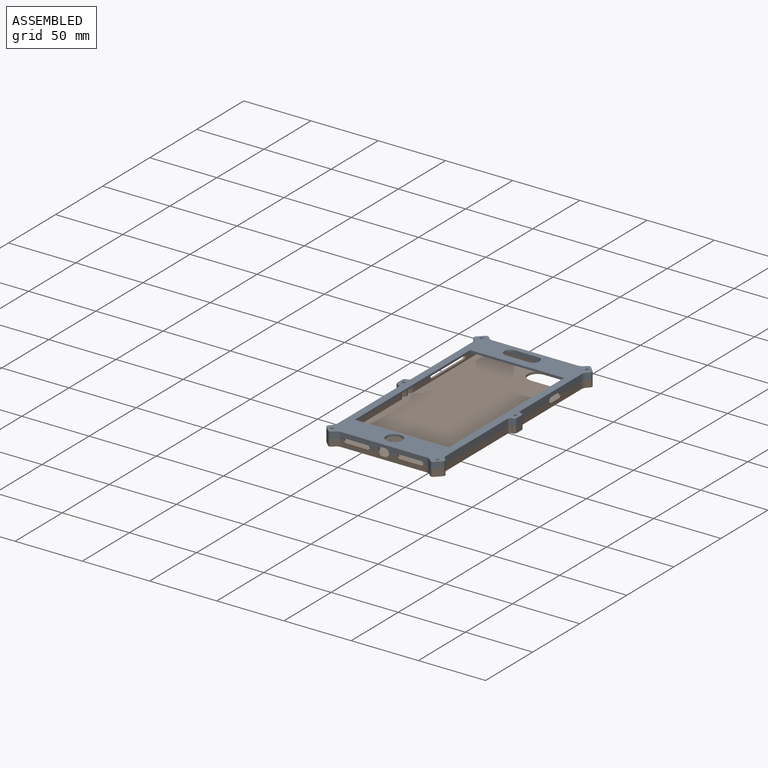
[diagram: assembled view]
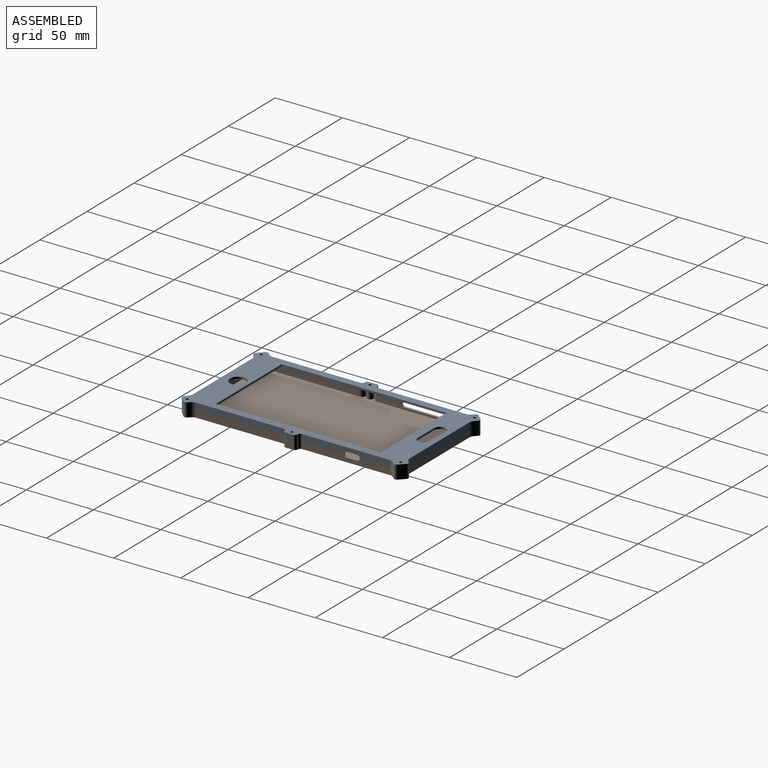
[diagram: assembled view, second angle]
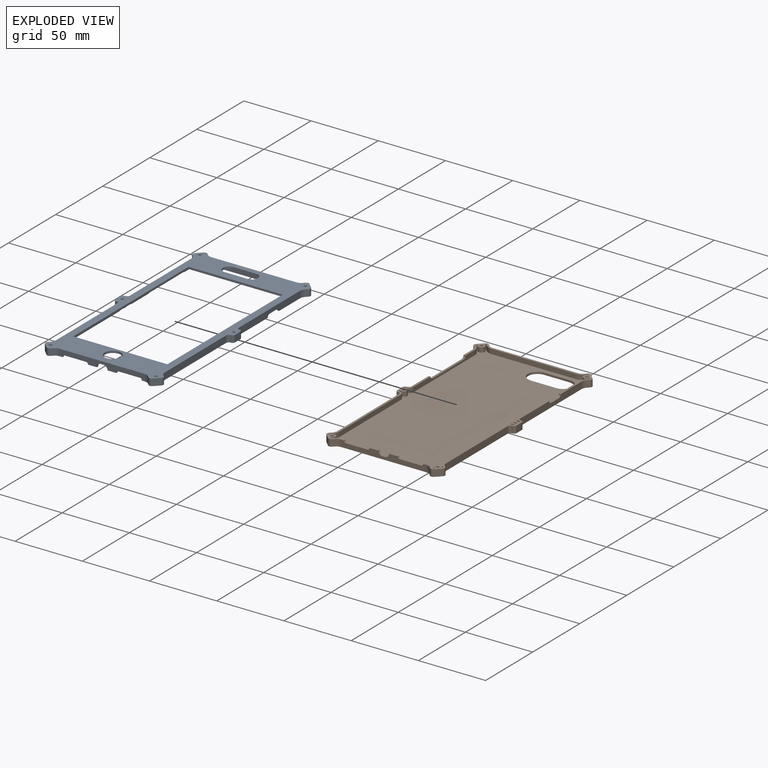
[diagram: exploded view]
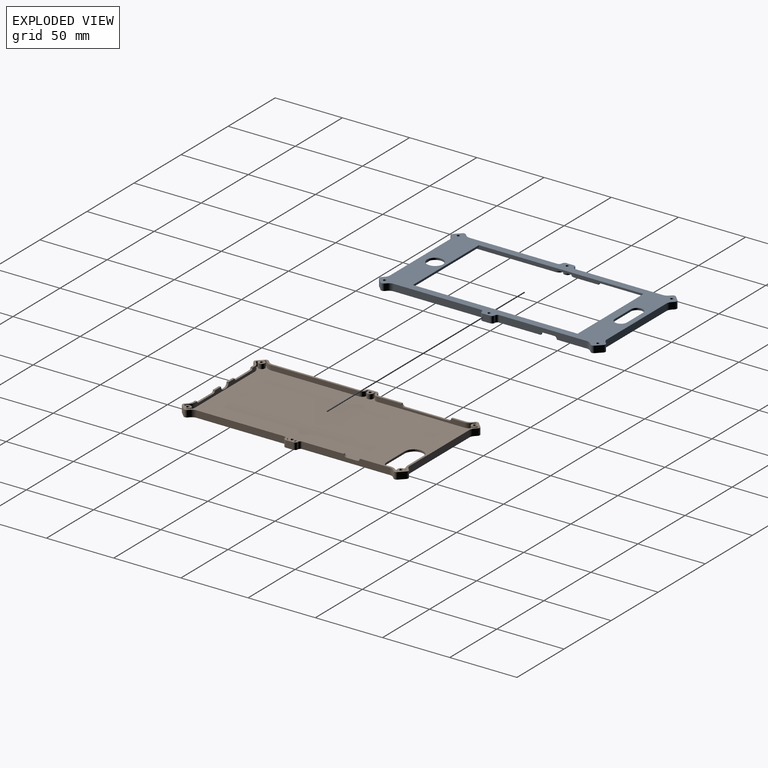
[diagram: exploded view, second angle]
ASSEMBLY  parts=2 mates=3
PART A: 137 faces, bbox 88.9x168x5.1 mm
  f0: plane 165.05x85.94mm, normal (0,0,-1), area 3486.2mm2, adj f53,f54,f55,f56,f57,f58,f59,f60
  f1: plane 168.05x88.94mm, normal (0,0,1), area 4332.9mm2, adj f2,f3,f4,f5,f6,f7,f8,f9
  f2: plane 63.32x5.05mm, normal (0,-1,0), area 244.6mm2, adj f1,f35,f36,f62,f63,f64,f65,f113
  f3: plane 5.5x5.05mm, normal (1,0,0), area 27.8mm2, adj f1,f4,f45,f64
  f4: cylinder r=2mm len=5.05mm, axis (0,0,-1), area 15.9mm2, adj f1,f3,f5,f64
  f5: cylinder r=2mm len=5.05mm, axis (0,0,-1), area 15.9mm2, adj f1,f4,f6,f64
  f6: plane 65.05x5.05mm, normal (1,0,0), area 306.2mm2, adj f1,f5,f7,f52,f64,f110,f111,f112
  f7: cylinder r=5mm len=5.05mm, axis (0,0,-1), area 19.8mm2, adj f1,f6,f8,f52
  f8: plane 5.05x1.36mm, normal (0.71,-0.71,0), area 9.7mm2, adj f1,f7,f9,f52
  f9: cylinder r=2mm len=5.05mm, axis (0,0,-1), area 15.9mm2, adj f1,f8,f10,f52
  f10: plane 5.05x3.91mm, normal (0.71,0.71,0), area 27.9mm2, adj f1,f9,f11,f52
  f11: cylinder r=2mm len=5.05mm, axis (0,0,-1), area 15.9mm2, adj f1,f10,f12,f52
  f12: plane 5.05x1.36mm, normal (-0.71,0.71,0), area 9.7mm2, adj f1,f11,f13,f52
  f13: cylinder r=5mm len=5.05mm, axis (0,0,-1), area 19.8mm2, adj f1,f12,f14,f52
  f14: plane 63.32x5.05mm, normal (0,1,0), area 319.8mm2, adj f1,f13,f15,f52
  f15: cylinder r=5mm len=5.05mm, axis (0,0,-1), area 19.8mm2, adj f1,f14,f16,f52
  f16: plane 5.05x1.36mm, normal (0.71,0.71,0), area 9.7mm2, adj f1,f15,f17,f52
  f17: cylinder r=2mm len=5.05mm, axis (0,0,-1), area 15.9mm2, adj f1,f16,f18,f52
  f18: plane 5.05x3.91mm, normal (-0.71,0.71,0), area 27.9mm2, adj f1,f17,f19,f52
  f19: cylinder r=2mm len=5.05mm, axis (0,0,-1), area 15.9mm2, adj f1,f18,f20,f52
  f20: plane 5.05x1.36mm, normal (-0.71,-0.71,0), area 9.7mm2, adj f1,f19,f21,f52
  f21: cylinder r=5mm len=5.05mm, axis (0,0,-1), area 19.8mm2, adj f1,f20,f22,f52
  f22: plane 65.05x5.05mm, normal (-1,0,0), area 256.3mm2, adj f1,f21,f23,f52,f62,f107,f108,f109
  f23: cylinder r=2mm len=5.05mm, axis (0,0,-1), area 15.9mm2, adj f1,f22,f24,f62
  f24: cylinder r=2mm len=5.05mm, axis (0,0,-1), area 15.9mm2, adj f1,f23,f25,f62
  f25: plane 5.5x5.05mm, normal (-1,0,0), area 27.8mm2, adj f1,f24,f26,f62
  f26: cylinder r=2mm len=5.05mm, axis (0,0,-1), area 15.9mm2, adj f1,f25,f27,f62
  f27: cylinder r=2mm len=5.05mm, axis (0,0,-1), area 15.9mm2, adj f1,f26,f28,f62
  f28: plane 65.05x5.05mm, normal (-1,0,0), area 328.5mm2, adj f1,f27,f29,f62
  f29: cylinder r=5mm len=5.05mm, axis (0,0,-1), area 19.8mm2, adj f1,f28,f30,f62
  f30: plane 5.05x1.36mm, normal (-0.71,0.71,0), area 9.7mm2, adj f1,f29,f31,f62
  f31: cylinder r=2mm len=5.05mm, axis (0,0,-1), area 15.9mm2, adj f1,f30,f32,f62
  f32: plane 5.05x3.91mm, normal (-0.71,-0.71,0), area 27.9mm2, adj f1,f31,f33,f62
  f33: cylinder r=2mm len=5.05mm, axis (0,0,-1), area 15.9mm2, adj f1,f32,f34,f62
  f34: plane 5.05x1.36mm, normal (0.71,-0.71,0), area 9.7mm2, adj f1,f33,f35,f62
  f35: cylinder r=5mm len=5.05mm, axis (0,0,-1), area 19.8mm2, adj f1,f2,f34,f62
  f36: cylinder r=5mm len=5.05mm, axis (0,0,-1), area 19.8mm2, adj f1,f2,f37,f64
  f37: plane 5.05x1.36mm, normal (-0.71,-0.71,0), area 9.7mm2, adj f1,f36,f38,f64
  f38: cylinder r=2mm len=5.05mm, axis (0,0,-1), area 15.9mm2, adj f1,f37,f39,f64
  f39: plane 5.05x3.91mm, normal (0.71,-0.71,0), area 27.9mm2, adj f1,f38,f40,f64
  f40: cylinder r=2mm len=5.05mm, axis (0,0,-1), area 15.9mm2, adj f1,f39,f41,f64
  f41: plane 5.05x1.36mm, normal (0.71,0.71,0), area 9.7mm2, adj f1,f40,f42,f64
  f42: cylinder r=5mm len=5.05mm, axis (0,0,-1), area 19.8mm2, adj f1,f41,f43,f64
  f43: plane 65.05x5.05mm, normal (1,0,0), area 328.5mm2, adj f1,f42,f44,f64
  f44: cylinder r=2mm len=5.05mm, axis (0,0,-1), area 15.9mm2, adj f1,f43,f45,f64
  f45: cylinder r=2mm len=5.05mm, axis (0,0,-1), area 15.9mm2, adj f1,f3,f44,f64
  f46: cylinder r=1.1mm len=5.05mm, axis (0,0,-1), area 34.9mm2, adj f1,f52
  f47: cylinder r=1.1mm len=5.05mm, axis (0,0,-1), area 34.9mm2, adj f1,f62
  f48: cylinder r=1.1mm len=5.05mm, axis (0,0,-1), area 34.9mm2, adj f1,f62
  f49: cylinder r=1.1mm len=5.05mm, axis (0,0,-1), area 34.9mm2, adj f1,f64
  f50: cylinder r=1.1mm len=5.05mm, axis (0,0,-1), area 34.9mm2, adj f1,f52
  f51: cylinder r=1.1mm len=5.05mm, axis (0,0,-1), area 34.9mm2, adj f1,f64
  f52: plane 87.77x34.41mm, normal (0,0,-1), area 236.1mm2, adj f6,f7,f8,f9,f10,f11,f12,f13
  f53: plane 3.55x0.75mm, normal (1,0,0), area 2.7mm2, adj f0,f62,f87,f127
  f54: plane 3.55x0.75mm, normal (1,0,0), area 2.7mm2, adj f0,f62,f88,f127
  f55: plane 3.55x0.75mm, normal (-1,0,0), area 2.7mm2, adj f0,f64,f106,f126
  f56: plane 3.55x0.54mm, normal (-0.71,0.71,0), area 2.7mm2, adj f0,f64,f100,f125
  f57: plane 3.55x0.54mm, normal (-0.71,0.71,0), area 2.7mm2, adj f0,f64,f101,f125
  f58: plane 3.55x0.54mm, normal (0.71,0.71,0), area 2.7mm2, adj f0,f62,f95,f124
  f59: plane 3.55x0.54mm, normal (0.71,-0.71,0), area 2.7mm2, adj f0,f52,f81,f123
  f60: plane 3.55x0.54mm, normal (0.71,-0.71,0), area 2.7mm2, adj f0,f52,f82,f123
  f61: plane 3.55x0.54mm, normal (-0.71,-0.71,0), area 2.7mm2, adj f0,f52,f75,f122
  f62: plane 109.03x14.97mm, normal (0,0,-1), area 214.9mm2, adj f2,f22,f23,f24,f25,f26,f27,f28
  f63: plane 6.5x1.5mm, normal (0,0,-1), area 9.8mm2, adj f2,f66,f114,f121
  f64: plane 121.63x14.97mm, normal (0,0,-1), area 233.8mm2, adj f2,f3,f4,f5,f6,f36,f37,f38
  f65: plane 6.5x1.5mm, normal (0,0,-1), area 9.8mm2, adj f2,f66,f113,f118
  f66: plane 63.32x3.55mm, normal (0,1,0), area 149.6mm2, adj f0,f62,f63,f64,f65,f97,f98,f113
  f67: plane 3.55x0.75mm, normal (-1,0,0), area 2.7mm2, adj f0,f64,f68,f126
  f68: cylinder r=0.5mm len=3.55mm, axis (0,0,1), area 2.8mm2, adj f0,f64,f67,f69
  f69: cylinder r=3.5mm len=3.55mm, axis (0,0,1), area 19.5mm2, adj f0,f64,f68,f70
  f70: plane 65.05x3.55mm, normal (-1,0,0), area 208.7mm2, adj f0,f52,f64,f69,f71,f110,f111,f112
  f71: cylinder r=6.5mm len=4.6mm, axis (0,0,1), area 18.1mm2, adj f0,f52,f70,f72
  f72: plane 3.55x1.36mm, normal (-0.71,0.71,0), area 6.8mm2, adj f0,f52,f71,f73
  f73: cylinder r=0.5mm len=3.55mm, axis (0,0,1), area 2.8mm2, adj f0,f52,f72,f74
  f74: plane 3.55x0.54mm, normal (-0.71,-0.71,0), area 2.7mm2, adj f0,f52,f73,f122
  f75: cylinder r=0.5mm len=3.55mm, axis (0,0,1), area 2.8mm2, adj f0,f52,f61,f76
  f76: plane 3.55x1.36mm, normal (0.71,-0.71,0), area 6.8mm2, adj f0,f52,f75,f77
  f77: cylinder r=6.5mm len=4.6mm, axis (0,0,1), area 18.1mm2, adj f0,f52,f76,f78
  f78: plane 63.32x3.55mm, normal (0,-1,0), area 224.8mm2, adj f0,f52,f77,f79
  f79: cylinder r=6.5mm len=4.6mm, axis (0,0,1), area 18.1mm2, adj f0,f52,f78,f80
  f80: plane 3.55x1.36mm, normal (-0.71,-0.71,0), area 6.8mm2, adj f0,f52,f79,f81
  f81: cylinder r=0.5mm len=3.55mm, axis (0,0,1), area 2.8mm2, adj f0,f52,f59,f80
  f82: cylinder r=0.5mm len=3.55mm, axis (0,0,1), area 2.8mm2, adj f0,f52,f60,f83
  f83: plane 3.55x1.36mm, normal (0.71,0.71,0), area 6.8mm2, adj f0,f52,f82,f84
  f84: cylinder r=6.5mm len=4.6mm, axis (0,0,1), area 18.1mm2, adj f0,f52,f83,f85
  f85: plane 65.05x3.55mm, normal (1,0,0), area 158.7mm2, adj f0,f52,f62,f84,f86,f107,f108,f109
  f86: cylinder r=3.5mm len=3.55mm, axis (0,0,1), area 19.5mm2, adj f0,f62,f85,f87
  f87: cylinder r=0.5mm len=3.55mm, axis (0,0,1), area 2.8mm2, adj f0,f53,f62,f86
  f88: cylinder r=0.5mm len=3.55mm, axis (0,0,1), area 2.8mm2, adj f0,f54,f62,f89
  f89: cylinder r=3.5mm len=3.55mm, axis (0,0,1), area 19.5mm2, adj f0,f62,f88,f90
  f90: plane 65.05x3.55mm, normal (1,0,0), area 230.9mm2, adj f0,f62,f89,f91
  f91: cylinder r=6.5mm len=4.6mm, axis (0,0,1), area 18.1mm2, adj f0,f62,f90,f92
  f92: plane 3.55x1.36mm, normal (0.71,-0.71,0), area 6.8mm2, adj f0,f62,f91,f93
  f93: cylinder r=0.5mm len=3.55mm, axis (0,0,1), area 2.8mm2, adj f0,f62,f92,f94
  f94: plane 3.55x0.54mm, normal (0.71,0.71,0), area 2.7mm2, adj f0,f62,f93,f124
  f95: cylinder r=0.5mm len=3.55mm, axis (0,0,1), area 2.8mm2, adj f0,f58,f62,f96
  f96: plane 3.55x1.36mm, normal (-0.71,0.71,0), area 6.8mm2, adj f0,f62,f95,f97
  f97: cylinder r=6.5mm len=4.6mm, axis (0,0,1), area 18.1mm2, adj f0,f62,f66,f96
  f98: cylinder r=6.5mm len=4.6mm, axis (0,0,1), area 18.1mm2, adj f0,f64,f66,f99
  f99: plane 3.55x1.36mm, normal (0.71,0.71,0), area 6.8mm2, adj f0,f64,f98,f100
  f100: cylinder r=0.5mm len=3.55mm, axis (0,0,1), area 2.8mm2, adj f0,f56,f64,f99
  f101: cylinder r=0.5mm len=3.55mm, axis (0,0,1), area 2.8mm2, adj f0,f57,f64,f102
  f102: plane 3.55x1.36mm, normal (-0.71,-0.71,0), area 6.8mm2, adj f0,f64,f101,f103
  f103: cylinder r=6.5mm len=4.6mm, axis (0,0,1), area 18.1mm2, adj f0,f64,f102,f104
  f104: plane 65.05x3.55mm, normal (-1,0,0), area 230.9mm2, adj f0,f64,f103,f105
  f105: cylinder r=3.5mm len=3.55mm, axis (0,0,1), area 19.5mm2, adj f0,f64,f104,f106
  f106: cylinder r=0.5mm len=3.55mm, axis (0,0,1), area 2.8mm2, adj f0,f55,f64,f105
  f107: cylinder r=2mm len=2mm, axis (1,0,0), area 4.7mm2, adj f22,f62,f85,f108
  f108: plane 32.9x1.5mm, normal (0,0,-1), area 49.4mm2, adj f22,f85,f107,f109
  f109: cylinder r=2mm len=2.1mm, axis (1,0,0), area 4.9mm2, adj f22,f52,f85,f108
  f110: plane 8x1.5mm, normal (0,0,-1), area 12mm2, adj f6,f70,f111,f112
  f111: cylinder r=2mm len=2mm, axis (-1,0,0), area 4.7mm2, adj f6,f64,f70,f110
  f112: cylinder r=2mm len=2mm, axis (-1,0,0), area 4.7mm2, adj f6,f52,f70,f110
  f113: cylinder r=3mm len=3mm, axis (0,1,0), area 7.1mm2, adj f2,f65,f66,f115
  f114: cylinder r=3mm len=3mm, axis (0,1,0), area 7.1mm2, adj f2,f63,f66,f115
  f115: plane 2x1.5mm, normal (0,0,-1), area 3mm2, adj f2,f66,f113,f114
  f116: plane 16x1.5mm, normal (0,0,-1), area 24mm2, adj f2,f66,f117,f118
  f117: cylinder r=1.5mm len=1.5mm, axis (0,1,0), area 3.5mm2, adj f2,f64,f66,f116
  f118: cylinder r=1.5mm len=1.5mm, axis (0,1,0), area 3.5mm2, adj f2,f65,f66,f116
  f119: cylinder r=1.5mm len=1.5mm, axis (0,1,0), area 3.5mm2, adj f2,f62,f66,f120
  f120: plane 16x1.5mm, normal (0,0,-1), area 24mm2, adj f2,f66,f119,f121
  f121: cylinder r=1.5mm len=1.5mm, axis (0,1,0), area 3.5mm2, adj f2,f63,f66,f120
  f122: cylinder r=2.5mm len=4.98mm, axis (0,0,1), area 39.3mm2, adj f0,f52,f61,f74
  f123: cylinder r=2.5mm len=4.98mm, axis (0,0,1), area 39.3mm2, adj f0,f52,f59,f60
  f124: cylinder r=2.5mm len=4.98mm, axis (0,0,1), area 39.3mm2, adj f0,f58,f62,f94
  f125: cylinder r=2.5mm len=4.98mm, axis (0,0,1), area 39.3mm2, adj f0,f56,f57,f64
  f126: cylinder r=2.5mm len=5mm, axis (0,0,1), area 39.3mm2, adj f0,f55,f64,f67
  f127: cylinder r=2.5mm len=5mm, axis (0,0,1), area 39.3mm2, adj f0,f53,f54,f62
  f128: plane 70x1.5mm, normal (0,-1,0), area 105mm2, adj f0,f1,f129,f131
  f129: plane 122.5x1.5mm, normal (1,0,0), area 183.8mm2, adj f0,f1,f128,f130
  f130: plane 70x1.5mm, normal (0,1,0), area 105mm2, adj f0,f1,f129,f131
  f131: plane 122.5x1.5mm, normal (-1,0,0), area 183.8mm2, adj f0,f1,f128,f130
  f132: cylinder r=6mm len=12mm, axis (0,0,1), area 56.5mm2, adj f0,f1
  f133: plane 17x1.5mm, normal (0,-1,0), area 25.5mm2, adj f0,f1,f134,f136
  f134: cylinder r=4.5mm len=9mm, axis (0,0,1), area 21.2mm2, adj f0,f1,f133,f135
  f135: plane 17x1.5mm, normal (0,1,0), area 25.5mm2, adj f0,f1,f134,f136
  f136: cylinder r=4.5mm len=9mm, axis (0,0,1), area 21.2mm2, adj f0,f1,f133,f135
PART B: 132 faces, bbox 88.9x168x5.1 mm
  f0: plane 168.05x88.94mm, normal (0,0,-1), area 12817.7mm2, adj f16,f18,f19,f20,f21,f22,f23,f24
  f1: plane 87.77x34.41mm, normal (0,0,1), area 236.1mm2, adj f8,f9,f10,f44,f45,f46,f47,f48
  f2: plane 3.55x0.75mm, normal (1,0,0), area 2.7mm2, adj f11,f12,f63,f125
  f3: plane 3.55x0.75mm, normal (1,0,0), area 2.7mm2, adj f11,f12,f62,f125
  f4: plane 3.55x0.75mm, normal (-1,0,0), area 2.7mm2, adj f11,f14,f81,f124
  f5: plane 3.55x0.72mm, normal (-0.71,0.71,0), area 3.6mm2, adj f11,f14,f75,f123
  f6: plane 3.55x0.52mm, normal (-0.71,0.71,0), area 2.6mm2, adj f11,f14,f76,f123
  f7: plane 3.55x0.72mm, normal (0.71,0.71,0), area 3.6mm2, adj f11,f12,f70,f122
  f8: plane 3.55x0.54mm, normal (0.71,-0.71,0), area 2.7mm2, adj f1,f11,f96,f121
  f9: plane 3.55x0.54mm, normal (0.71,-0.71,0), area 2.7mm2, adj f1,f11,f97,f121
  f10: plane 3.55x0.54mm, normal (-0.71,-0.71,0), area 2.7mm2, adj f1,f11,f90,f120
  f11: plane 165.05x85.94mm, normal (0,0,1), area 11969.9mm2, adj f2,f3,f4,f5,f6,f7,f8,f9
  f12: plane 109.03x14.97mm, normal (0,0,1), area 215.4mm2, adj f2,f3,f7,f16,f17,f18,f19,f20
  f13: plane 6.5x1.5mm, normal (0,0,1), area 9.8mm2, adj f16,f17,f108,f115
  f14: plane 121.63x14.97mm, normal (0,0,1), area 234.3mm2, adj f4,f5,f6,f16,f17,f31,f32,f33
  f15: plane 6.5x1.5mm, normal (0,0,1), area 9.8mm2, adj f16,f17,f107,f112
  f16: plane 63.32x5.05mm, normal (0,-1,0), area 244.6mm2, adj f0,f12,f13,f14,f15,f30,f31,f107
  f17: plane 63.32x3.55mm, normal (0,1,0), area 149.6mm2, adj f11,f12,f13,f14,f15,f72,f73,f107
  f18: cylinder r=2mm len=5.05mm, axis (0,0,-1), area 15.9mm2, adj f0,f12,f19,f60
  f19: cylinder r=2mm len=5.05mm, axis (0,0,-1), area 15.9mm2, adj f0,f12,f18,f20
  f20: plane 5.5x5.05mm, normal (-1,0,0), area 27.8mm2, adj f0,f12,f19,f21
  f21: cylinder r=2mm len=5.05mm, axis (0,0,-1), area 15.9mm2, adj f0,f12,f20,f22
  f22: cylinder r=2mm len=5.05mm, axis (0,0,-1), area 15.9mm2, adj f0,f12,f21,f23
  f23: plane 65.15x5.05mm, normal (-1,0,0), area 329mm2, adj f0,f12,f22,f24
  f24: cylinder r=5mm len=5.05mm, axis (0,0,-1), area 19.8mm2, adj f0,f12,f23,f25
  f25: plane 5.05x1.36mm, normal (-0.71,0.71,0), area 9.7mm2, adj f0,f12,f24,f26
  f26: cylinder r=2mm len=5.05mm, axis (0,0,-1), area 15.9mm2, adj f0,f12,f25,f27
  f27: plane 5.05x3.91mm, normal (-0.71,-0.71,0), area 27.9mm2, adj f0,f12,f26,f28
  f28: cylinder r=2mm len=5.05mm, axis (0,0,-1), area 15.9mm2, adj f0,f12,f27,f29
  f29: plane 5.05x1.36mm, normal (0.71,-0.71,0), area 9.7mm2, adj f0,f12,f28,f30
  f30: cylinder r=5mm len=5.05mm, axis (0,0,-1), area 19.8mm2, adj f0,f12,f16,f29
  f31: cylinder r=5mm len=5.05mm, axis (0,0,-1), area 19.8mm2, adj f0,f14,f16,f32
  f32: plane 5.05x1.36mm, normal (-0.71,-0.71,0), area 9.7mm2, adj f0,f14,f31,f33
  f33: cylinder r=2mm len=5.05mm, axis (0,0,-1), area 15.9mm2, adj f0,f14,f32,f34
  f34: plane 5.05x3.91mm, normal (0.71,-0.71,0), area 27.9mm2, adj f0,f14,f33,f35
  f35: cylinder r=2mm len=5.05mm, axis (0,0,-1), area 15.9mm2, adj f0,f14,f34,f36
  f36: plane 5.05x1.36mm, normal (0.71,0.71,0), area 9.7mm2, adj f0,f14,f35,f37
  f37: cylinder r=5mm len=5.05mm, axis (0,0,-1), area 19.8mm2, adj f0,f14,f36,f38
  f38: plane 65.15x5.05mm, normal (1,0,0), area 329mm2, adj f0,f14,f37,f39
  f39: cylinder r=2mm len=5.05mm, axis (0,0,-1), area 15.9mm2, adj f0,f14,f38,f40
  f40: cylinder r=2mm len=5.05mm, axis (0,0,-1), area 15.9mm2, adj f0,f14,f39,f41
  f41: plane 5.5x5.05mm, normal (1,0,0), area 27.8mm2, adj f0,f14,f40,f42
  f42: cylinder r=2mm len=5.05mm, axis (0,0,-1), area 15.9mm2, adj f0,f14,f41,f43
  f43: cylinder r=2mm len=5.05mm, axis (0,0,-1), area 15.9mm2, adj f0,f14,f42,f44
  f44: plane 64.95x5.05mm, normal (1,0,0), area 305.7mm2, adj f0,f1,f14,f43,f45,f104,f105,f106
  f45: cylinder r=5mm len=5.05mm, axis (0,0,-1), area 19.8mm2, adj f0,f1,f44,f46
  f46: plane 5.05x1.36mm, normal (0.71,-0.71,0), area 9.7mm2, adj f0,f1,f45,f47
  f47: cylinder r=2mm len=5.05mm, axis (0,0,-1), area 15.9mm2, adj f0,f1,f46,f48
  f48: plane 5.05x3.91mm, normal (0.71,0.71,0), area 27.9mm2, adj f0,f1,f47,f49
  f49: cylinder r=2mm len=5.05mm, axis (0,0,-1), area 15.9mm2, adj f0,f1,f48,f50
  f50: plane 5.05x1.36mm, normal (-0.71,0.71,0), area 9.7mm2, adj f0,f1,f49,f51
  f51: cylinder r=5mm len=5.05mm, axis (0,0,-1), area 19.8mm2, adj f0,f1,f50,f52
  f52: plane 63.32x5.05mm, normal (0,1,0), area 319.8mm2, adj f0,f1,f51,f53
  f53: cylinder r=5mm len=5.05mm, axis (0,0,-1), area 19.8mm2, adj f0,f1,f52,f54
  f54: plane 5.05x1.36mm, normal (0.71,0.71,0), area 9.7mm2, adj f0,f1,f53,f55
  f55: cylinder r=2mm len=5.05mm, axis (0,0,-1), area 15.9mm2, adj f0,f1,f54,f56
  f56: plane 5.05x3.91mm, normal (-0.71,0.71,0), area 27.9mm2, adj f0,f1,f55,f57
  f57: cylinder r=2mm len=5.05mm, axis (0,0,-1), area 15.9mm2, adj f0,f1,f56,f58
  f58: plane 5.05x1.36mm, normal (-0.71,-0.71,0), area 9.7mm2, adj f0,f1,f57,f59
  f59: cylinder r=5mm len=5.05mm, axis (0,0,-1), area 19.8mm2, adj f0,f1,f58,f60
  f60: plane 64.95x5.05mm, normal (-1,0,0), area 255.7mm2, adj f0,f1,f12,f18,f59,f101,f102,f103
  f61: cylinder r=3.5mm len=3.55mm, axis (0,0,-1), area 19.5mm2, adj f11,f12,f62,f100
  f62: cylinder r=0.5mm len=3.55mm, axis (0,0,-1), area 2.8mm2, adj f3,f11,f12,f61
  f63: cylinder r=0.5mm len=3.55mm, axis (0,0,-1), area 2.8mm2, adj f2,f11,f12,f64
  f64: cylinder r=3.5mm len=3.55mm, axis (0,0,-1), area 19.5mm2, adj f11,f12,f63,f65
  f65: plane 65.15x3.55mm, normal (1,0,0), area 231.3mm2, adj f11,f12,f64,f66
  f66: cylinder r=6.5mm len=4.6mm, axis (0,0,-1), area 18.1mm2, adj f11,f12,f65,f67
  f67: plane 3.55x1.36mm, normal (0.71,-0.71,0), area 6.8mm2, adj f11,f12,f66,f68
  f68: cylinder r=0.5mm len=3.55mm, axis (0,0,-1), area 2.8mm2, adj f11,f12,f67,f69
  f69: plane 3.55x0.52mm, normal (0.71,0.71,0), area 2.6mm2, adj f11,f12,f68,f122
  f70: cylinder r=0.5mm len=3.55mm, axis (0,0,-1), area 2.8mm2, adj f7,f11,f12,f71
  f71: plane 3.55x1.36mm, normal (-0.71,0.71,0), area 6.8mm2, adj f11,f12,f70,f72
  f72: cylinder r=6.5mm len=4.6mm, axis (0,0,-1), area 18.1mm2, adj f11,f12,f17,f71
  f73: cylinder r=6.5mm len=4.6mm, axis (0,0,-1), area 18.1mm2, adj f11,f14,f17,f74
  f74: plane 3.55x1.36mm, normal (0.71,0.71,0), area 6.8mm2, adj f11,f14,f73,f75
  f75: cylinder r=0.5mm len=3.55mm, axis (0,0,-1), area 2.8mm2, adj f5,f11,f14,f74
  f76: cylinder r=0.5mm len=3.55mm, axis (0,0,-1), area 2.8mm2, adj f6,f11,f14,f77
  f77: plane 3.55x1.36mm, normal (-0.71,-0.71,0), area 6.8mm2, adj f11,f14,f76,f78
  f78: cylinder r=6.5mm len=4.6mm, axis (0,0,-1), area 18.1mm2, adj f11,f14,f77,f79
  f79: plane 65.15x3.55mm, normal (-1,0,0), area 231.3mm2, adj f11,f14,f78,f80
  f80: cylinder r=3.5mm len=3.55mm, axis (0,0,-1), area 19.5mm2, adj f11,f14,f79,f81
  f81: cylinder r=0.5mm len=3.55mm, axis (0,0,-1), area 2.8mm2, adj f4,f11,f14,f80
  f82: plane 3.55x0.75mm, normal (-1,0,0), area 2.7mm2, adj f11,f14,f83,f124
  f83: cylinder r=0.5mm len=3.55mm, axis (0,0,-1), area 2.8mm2, adj f11,f14,f82,f84
  f84: cylinder r=3.5mm len=3.55mm, axis (0,0,-1), area 19.5mm2, adj f11,f14,f83,f85
  f85: plane 64.95x3.55mm, normal (-1,0,0), area 208.3mm2, adj f1,f11,f14,f84,f86,f104,f105,f106
  f86: cylinder r=6.5mm len=4.6mm, axis (0,0,-1), area 18.1mm2, adj f1,f11,f85,f87
  f87: plane 3.55x1.36mm, normal (-0.71,0.71,0), area 6.8mm2, adj f1,f11,f86,f88
  f88: cylinder r=0.5mm len=3.55mm, axis (0,0,-1), area 2.8mm2, adj f1,f11,f87,f89
  f89: plane 3.55x0.54mm, normal (-0.71,-0.71,0), area 2.7mm2, adj f1,f11,f88,f120
  f90: cylinder r=0.5mm len=3.55mm, axis (0,0,-1), area 2.8mm2, adj f1,f10,f11,f91
  f91: plane 3.55x1.36mm, normal (0.71,-0.71,0), area 6.8mm2, adj f1,f11,f90,f92
  f92: cylinder r=6.5mm len=4.6mm, axis (0,0,-1), area 18.1mm2, adj f1,f11,f91,f93
  f93: plane 63.32x3.55mm, normal (0,-1,0), area 224.8mm2, adj f1,f11,f92,f94
  f94: cylinder r=6.5mm len=4.6mm, axis (0,0,-1), area 18.1mm2, adj f1,f11,f93,f95
  f95: plane 3.55x1.36mm, normal (-0.71,-0.71,0), area 6.8mm2, adj f1,f11,f94,f96
  f96: cylinder r=0.5mm len=3.55mm, axis (0,0,-1), area 2.8mm2, adj f1,f8,f11,f95
  f97: cylinder r=0.5mm len=3.55mm, axis (0,0,-1), area 2.8mm2, adj f1,f9,f11,f98
  f98: plane 3.55x1.36mm, normal (0.71,0.71,0), area 6.8mm2, adj f1,f11,f97,f99
  f99: cylinder r=6.5mm len=4.6mm, axis (0,0,-1), area 18.1mm2, adj f1,f11,f98,f100
  f100: plane 64.95x3.55mm, normal (1,0,0), area 158.3mm2, adj f1,f11,f12,f61,f99,f101,f102,f103
  f101: cylinder r=2mm len=2mm, axis (1,0,0), area 4.7mm2, adj f12,f60,f100,f102
  f102: plane 33x1.5mm, normal (0,0,1), area 49.5mm2, adj f60,f100,f101,f103
  f103: cylinder r=2mm len=2mm, axis (1,0,0), area 4.7mm2, adj f1,f60,f100,f102
  f104: plane 8x1.5mm, normal (0,0,1), area 12mm2, adj f44,f85,f105,f106
  f105: cylinder r=2mm len=2mm, axis (-1,0,0), area 4.7mm2, adj f14,f44,f85,f104
  f106: cylinder r=2mm len=2mm, axis (-1,0,0), area 4.7mm2, adj f1,f44,f85,f104
  f107: cylinder r=3mm len=3mm, axis (0,1,0), area 7.1mm2, adj f15,f16,f17,f109
  f108: cylinder r=3mm len=3mm, axis (0,1,0), area 7.1mm2, adj f13,f16,f17,f109
  f109: plane 2x1.5mm, normal (0,0,1), area 3mm2, adj f16,f17,f107,f108
  f110: plane 16x1.5mm, normal (0,0,1), area 24mm2, adj f16,f17,f111,f112
  f111: cylinder r=1.5mm len=1.5mm, axis (0,1,0), area 3.5mm2, adj f14,f16,f17,f110
  f112: cylinder r=1.5mm len=1.5mm, axis (0,1,0), area 3.5mm2, adj f15,f16,f17,f110
  f113: cylinder r=1.5mm len=1.5mm, axis (0,1,0), area 3.5mm2, adj f12,f16,f17,f114
  f114: plane 16x1.5mm, normal (0,0,1), area 24mm2, adj f16,f17,f113,f115
  f115: cylinder r=1.5mm len=1.5mm, axis (0,1,0), area 3.5mm2, adj f13,f16,f17,f114
  f116: plane 19x1.5mm, normal (0,-1,0), area 28.5mm2, adj f0,f11,f117,f119
  f117: cylinder r=7mm len=14mm, axis (0,0,1), area 33mm2, adj f0,f11,f116,f118
  f118: plane 19x1.5mm, normal (0,1,0), area 28.5mm2, adj f0,f11,f117,f119
  f119: cylinder r=7mm len=14mm, axis (0,0,1), area 33mm2, adj f0,f11,f116,f118
  f120: cylinder r=2.5mm len=4.98mm, axis (0,0,-1), area 39.3mm2, adj f1,f10,f11,f89
  f121: cylinder r=2.5mm len=4.98mm, axis (0,0,-1), area 39.3mm2, adj f1,f8,f9,f11
  f122: cylinder r=2.5mm len=4.99mm, axis (0,0,-1), area 40.6mm2, adj f7,f11,f12,f69
  f123: cylinder r=2.5mm len=4.99mm, axis (0,0,-1), area 40.6mm2, adj f5,f6,f11,f14
  f124: cylinder r=2.5mm len=5mm, axis (0,0,-1), area 39.3mm2, adj f4,f11,f14,f82
  f125: cylinder r=2.5mm len=5mm, axis (0,0,-1), area 39.3mm2, adj f2,f3,f11,f12
  f126: cylinder r=1.1mm len=5.05mm, axis (0,0,-1), area 34.9mm2, adj f0,f1
  f127: cylinder r=1.1mm len=5.05mm, axis (0,0,-1), area 34.9mm2, adj f0,f1
  f128: cylinder r=1.1mm len=5.05mm, axis (0,0,-1), area 34.9mm2, adj f0,f14
  f129: cylinder r=1.1mm len=5.05mm, axis (0,0,-1), area 34.9mm2, adj f0,f14
  f130: cylinder r=1.1mm len=5.05mm, axis (0,0,-1), area 34.9mm2, adj f0,f12
  f131: cylinder r=1.1mm len=5.05mm, axis (0,0,-1), area 34.9mm2, adj f0,f12
PLACE A t=(20,0.75,51.74)mm
PLACE B t=(20,0.85,41.64)mm
MATE planar A.f43 <-> B.f38  axis (1,0,0) through (60.47,-38.53,49.21)mm
MATE planar B.f16 <-> A.f2  axis (0,-1,0) through (0,-79.86,45.19)mm
MATE planar B.f15 <-> A.f65  axis (0,0,1) through (27.25,-79.11,46.69)mm
